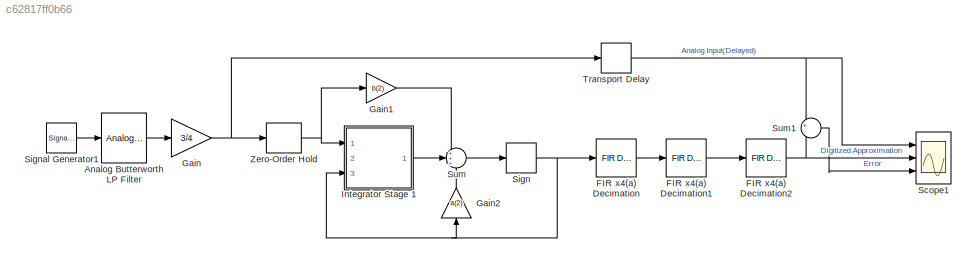
MODEL slx_c62817ff0b66
KIND model
CONFIG AbsTol = auto
CONFIG EnableMultiTasking = off
CONFIG FixedStep = auto
CONFIG MaxStep = auto
CONFIG MinStep = auto
CONFIG RelTol = 1e-3
CONFIG SampleTimeConstraint = Unconstrained
CONFIG Solver = ode5
CONFIG SolverName = ode5
CONFIG StartTime = 0.0
CONFIG StopTime = 1.0
BLOCK [Reference] Analog Butterworth LP Filter  REF=dsparch4/Analog
Filter Design
  Ports = [1, 1]
  SourceBlock = dsparch4/Analog\nFilter Design
  SourceProductBaseCode = DS
  SourceProductName = DSP System Toolbox
  SourceType = Analog Filter Design
BLOCK [Reference] FIR x4(a) Decimation  REF=dspmlti4/FIR
Decimation
  Ports = [1, 1]
  SourceBlock = dspmlti4/FIR\nDecimation
  SourceProductBaseCode = DS
  SourceProductName = DSP System Toolbox
  SourceType = FIR Decimation
  UserDataPersistent = on
BLOCK [Reference] FIR x4(a) Decimation1  REF=dspmlti4/FIR
Decimation
  Ports = [1, 1]
  SourceBlock = dspmlti4/FIR\nDecimation
  SourceProductBaseCode = DS
  SourceProductName = DSP System Toolbox
  SourceType = FIR Decimation
  UserDataPersistent = on
BLOCK [Reference] FIR x4(a) Decimation2  REF=dspmlti4/FIR
Decimation
  Ports = [1, 1]
  SourceBlock = dspmlti4/FIR\nDecimation
  SourceProductBaseCode = DS
  SourceProductName = DSP System Toolbox
  SourceType = FIR Decimation
  UserDataPersistent = on
BLOCK [Gain] Gain
  Gain = 3/4
BLOCK [Gain] Gain1
  Gain = b(2)
  OutDataTypeStr = Inherit: Inherit via internal rule
  ParamDataTypeStr = Inherit: Inherit via internal rule
  SaturateOnIntegerOverflow = off
BLOCK [Gain] Gain2
  Gain = a(2)
  OutDataTypeStr = Inherit: Inherit via internal rule
  ParamDataTypeStr = Inherit: Inherit via internal rule
  SaturateOnIntegerOverflow = off
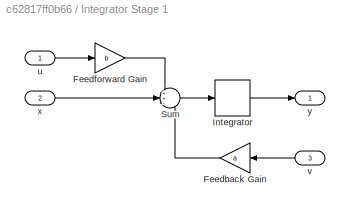
BLOCK [SubSystem] Integrator Stage 1
  Ports = [3, 1]
  RequestExecContextInheritance = off
  Variant = off
BLOCK [Gain] Integrator Stage 1/Feedback Gain
  Gain = a
  OutDataTypeStr = Inherit: Inherit via internal rule
  ParamDataTypeStr = Inherit: Inherit via internal rule
  SaturateOnIntegerOverflow = off
BLOCK [Gain] Integrator Stage 1/Feedforward Gain
  Gain = b
  OutDataTypeStr = Inherit: Inherit via internal rule
  ParamDataTypeStr = Inherit: Inherit via internal rule
  SaturateOnIntegerOverflow = off
BLOCK [DiscreteIntegrator] Integrator Stage 1/Integrator
  ICPrevOutput = DiscIntNeverNeededParam
  ICPrevScaledInput = DiscIntNeverNeededParam
  InitialConditionSetting = State (most efficient)
  Ports = [1, 1]
  SampleTime = -1
BLOCK [Sum] Integrator Stage 1/Sum
  IconShape = round
  InputSameDT = off
  Inputs = ++-
  OutDataTypeStr = Inherit: Inherit via internal rule
  Ports = [3, 1]
  SaturateOnIntegerOverflow = off
BLOCK [Inport] Integrator Stage 1/u
  IconDisplay = Port number
BLOCK [Inport] Integrator Stage 1/v
  IconDisplay = Port number
  Port = 3
BLOCK [Inport] Integrator Stage 1/x
  IconDisplay = Port number
  Port = 2
BLOCK [Outport] Integrator Stage 1/y
  IconDisplay = Port number
BLOCK [Scope] Scope1
  NumInputPorts = 3
  Ports = [3]
  ScopeSpecificationString = Simulink.scopes.TimeScopeBlockCfg('CurrentConfiguration', extmgr.ConfigurationSet(extmgr.Configuration('Core','General UI',true),extmgr.Configuration('Core','Source UI',true),extmgr.Configuration('Sources','WiredSimulink',true,'DataLoggingVariableName','ScopeData1'),extmgr.Configuration('Visuals','Time Domain',true,'SerializedDisplays',{struct('MinYLimReal','-1.17617','MaxYLimReal','1.17617','YLab...<+2771ch>
BLOCK [Signum] Sign
BLOCK [SignalGenerator] Signal Generator1
  Frequency = 80
  Ports = [0, 1]
  WaveForm = square
BLOCK [Sum] Sum
  IconShape = round
  InputSameDT = off
  Inputs = +++
  OutDataTypeStr = Inherit: Inherit via internal rule
  Ports = [3, 1]
  SaturateOnIntegerOverflow = off
BLOCK [Sum] Sum1
  IconShape = round
  Inputs = +-
  Ports = [2, 1]
BLOCK [TransportDelay] Transport Delay
  DelayTime = 336/512000
  Ports = [1, 1]
BLOCK [ZeroOrderHold] Zero-Order Hold
  SampleTime = 1/512000
LINE Analog Butterworth LP Filter:1 -> Gain:1
LINE FIR x4(a) Decimation1:1 -> FIR x4(a) Decimation2:1
NET FIR x4(a) Decimation2:1 -> Scope1:2, Sum1:2
LINE FIR x4(a) Decimation:1 -> FIR x4(a) Decimation1:1
LINE Gain1:1 -> Sum:1
LINE Gain2:1 -> Sum:3
NET Gain:1 -> Transport Delay:1, Zero-Order Hold:1
LINE Integrator Stage 1/Feedback Gain:1 -> Integrator Stage 1/Sum:3
LINE Integrator Stage 1/Feedforward Gain:1 -> Integrator Stage 1/Sum:1
LINE Integrator Stage 1/Integrator:1 -> Integrator Stage 1/y:1
LINE Integrator Stage 1/Sum:1 -> Integrator Stage 1/Integrator:1
LINE Integrator Stage 1/u:1 -> Integrator Stage 1/Feedforward Gain:1
LINE Integrator Stage 1/v:1 -> Integrator Stage 1/Feedback Gain:1
LINE Integrator Stage 1/x:1 -> Integrator Stage 1/Sum:2
LINE Integrator Stage 1:1 -> Sum:2
NET Sign:1 -> FIR x4(a) Decimation:1, Gain2:1, Integrator Stage 1:3
LINE Signal Generator1:1 -> Analog Butterworth LP Filter:1
LINE Sum1:1 -> Scope1:3
LINE Sum:1 -> Sign:1
NET Transport Delay:1 -> Scope1:1, Sum1:1
NET Zero-Order Hold:1 -> Gain1:1, Integrator Stage 1:1
note: NET lines group one-source signal fan-out (src -> all destinations, sorted); 1:1 wires keep LINE
